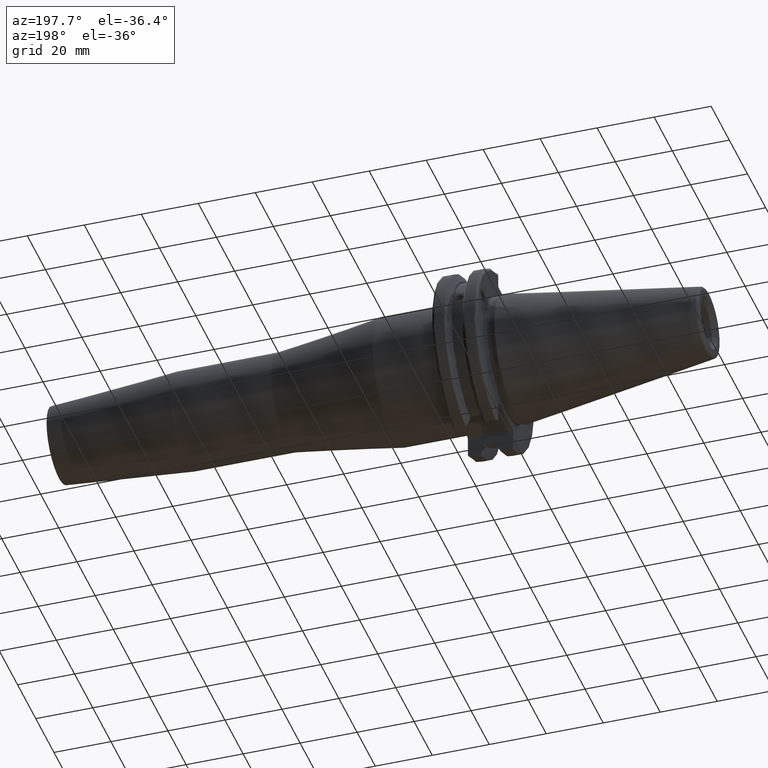
[diagram: clean part render]
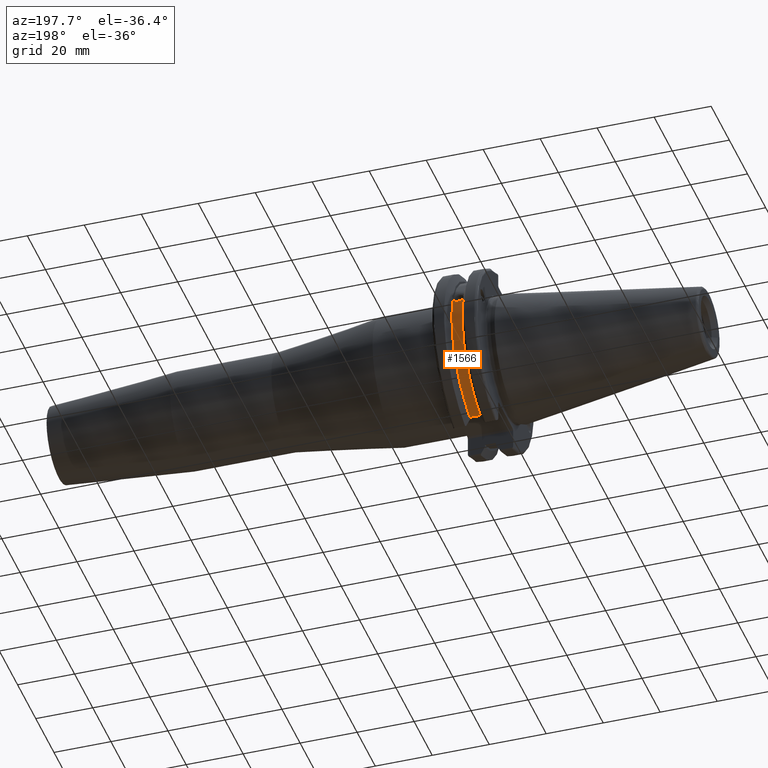
[diagram: same view with one face highlighted and labeled with its STEP entity id]
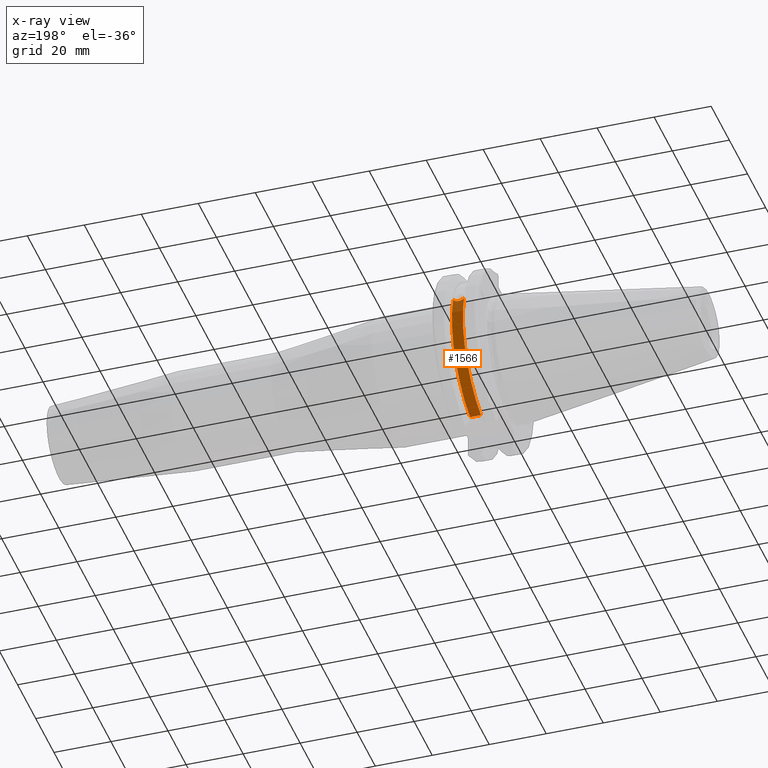
[diagram: x-ray of the same camera — body ghosted, the highlighted face saturated]
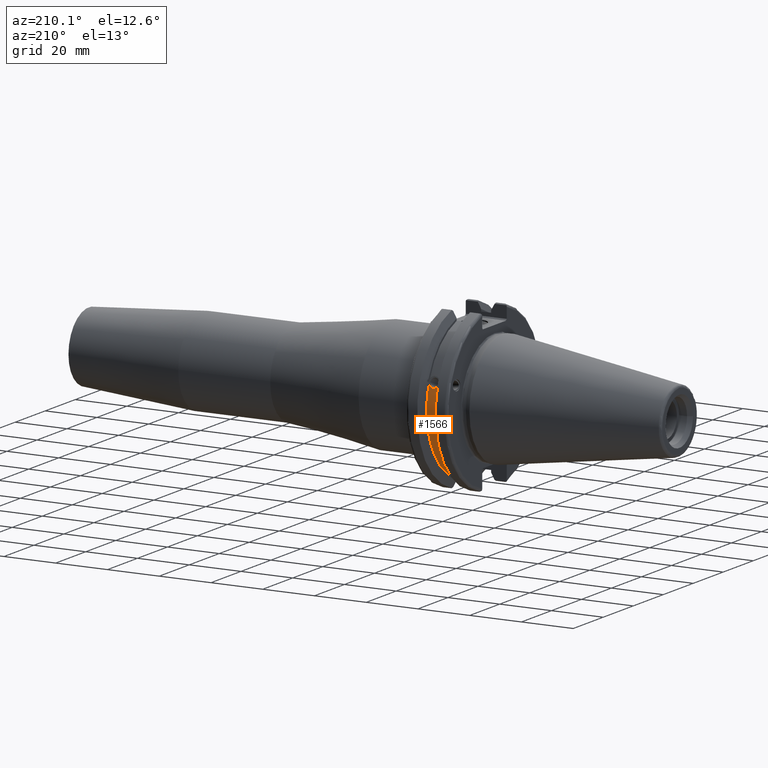
[diagram: same view with one face highlighted and labeled with its STEP entity id]
A machine part, auxiliary view. The second image highlights one B-rep face of the part: STEP entity #1566.
The next image is the same camera in x-ray: the body ghosted, the highlighted face saturated — about 0% of this face is hidden behind the body in this view.
A second angle (auxiliary view) of the same face is appended — the face is thin or edge-on in the first view.
In plain terms, the highlighted cylindrical surface (partial cylindrical patch) has radius 28.15 mm, axis along (1, 0, 0).
Its self-contained STEP definition (entity closure, byte-faithful):
#102=B_SPLINE_CURVE_WITH_KNOTS('',3,(#2632,#2633,#2634,#2635,#2636,#2637,
#2638,#2639,#2640,#2641,#2642,#2643,#2644,#2645),.UNSPECIFIED.,.F.,.F.,
(4,2,2,2,2,2,4),(0.401639126382403,0.474814416953736,0.553950208498303,
0.63308600004287,0.712221791587437,0.791357583132004,0.864532873703335),
 .UNSPECIFIED.);
#162=CYLINDRICAL_SURFACE('',#1735,28.15);
#212=FACE_OUTER_BOUND('',#313,.T.);
#313=EDGE_LOOP('',(#1232,#1233,#1234,#1235));
#412=LINE('',#2721,#512);
#512=VECTOR('',#2054,10.);
#609=CIRCLE('',#1734,28.15);
#610=CIRCLE('',#1736,28.15);
#713=VERTEX_POINT('',#2629);
#714=VERTEX_POINT('',#2631);
#726=VERTEX_POINT('',#2715);
#727=VERTEX_POINT('',#2719);
#900=EDGE_CURVE('',#714,#713,#102,.T.);
#914=EDGE_CURVE('',#726,#714,#609,.T.);
#916=EDGE_CURVE('',#727,#713,#610,.T.);
#917=EDGE_CURVE('',#727,#726,#412,.T.);
#1232=ORIENTED_EDGE('',*,*,#900,.T.);
#1233=ORIENTED_EDGE('',*,*,#916,.F.);
#1234=ORIENTED_EDGE('',*,*,#917,.T.);
#1235=ORIENTED_EDGE('',*,*,#914,.T.);
#1566=ADVANCED_FACE('',(#212),#162,.T.);
#1734=AXIS2_PLACEMENT_3D('',#2716,#2047,#2048);
#1735=AXIS2_PLACEMENT_3D('',#2718,#2050,#2051);
#1736=AXIS2_PLACEMENT_3D('',#2720,#2052,#2053);
#2047=DIRECTION('center_axis',(1.,0.,0.));
#2048=DIRECTION('ref_axis',(0.,0.,-1.));
#2050=DIRECTION('center_axis',(1.,0.,0.));
#2051=DIRECTION('ref_axis',(0.,1.,0.));
#2052=DIRECTION('center_axis',(1.,0.,0.));
#2053=DIRECTION('ref_axis',(0.,0.,-1.));
#2054=DIRECTION('',(-1.,0.,0.));
#2629=CARTESIAN_POINT('',(13.0491,26.734714844398,8.8134852464121));
#2631=CARTESIAN_POINT('',(9.2191,26.734714844398,8.81348524641212));
#2632=CARTESIAN_POINT('Ctrl Pts',(9.2191,26.734714844398,8.81348524641212));
#2633=CARTESIAN_POINT('Ctrl Pts',(9.32533057097183,26.8086519721597,8.58920529678291));
#2634=CARTESIAN_POINT('Ctrl Pts',(9.47682013770509,26.8729987454904,8.3841652999737));
#2635=CARTESIAN_POINT('Ctrl Pts',(9.83557062657411,26.9778908791383,8.04056861831091));
#2636=CARTESIAN_POINT('Ctrl Pts',(10.0716450112988,27.0233016799732,7.88512567185903));
#2637=CARTESIAN_POINT('Ctrl Pts',(10.5890125426388,27.0826966800569,7.6786444840004));
#2638=CARTESIAN_POINT('Ctrl Pts',(10.8703140281848,27.0968804077294,7.62768458768513));
#2639=CARTESIAN_POINT('Ctrl Pts',(11.3978859718152,27.0968804077294,7.62768458768513));
#2640=CARTESIAN_POINT('Ctrl Pts',(11.6791874573612,27.0826966800569,7.6786444840004));
#2641=CARTESIAN_POINT('Ctrl Pts',(12.1965549887012,27.0233016799732,7.88512567185903));
#2642=CARTESIAN_POINT('Ctrl Pts',(12.4326293734259,26.9778908791383,8.04056861831092));
#2643=CARTESIAN_POINT('Ctrl Pts',(12.7913798622949,26.8729987454904,8.38416529997369));
#2644=CARTESIAN_POINT('Ctrl Pts',(12.9428694290282,26.8086519721597,8.58920529678291));
#2645=CARTESIAN_POINT('Ctrl Pts',(13.0491,26.734714844398,8.81348524641211));
#2715=CARTESIAN_POINT('',(9.2191,8.19,-26.932255754021));
#2716=CARTESIAN_POINT('Origin',(9.2191,0.,0.));
#2718=CARTESIAN_POINT('Origin',(11.1341,0.,0.));
#2719=CARTESIAN_POINT('',(13.0491,8.19,-26.932255754021));
#2720=CARTESIAN_POINT('Origin',(13.0491,0.,0.));
#2721=CARTESIAN_POINT('',(11.1341,8.19,-26.932255754021));